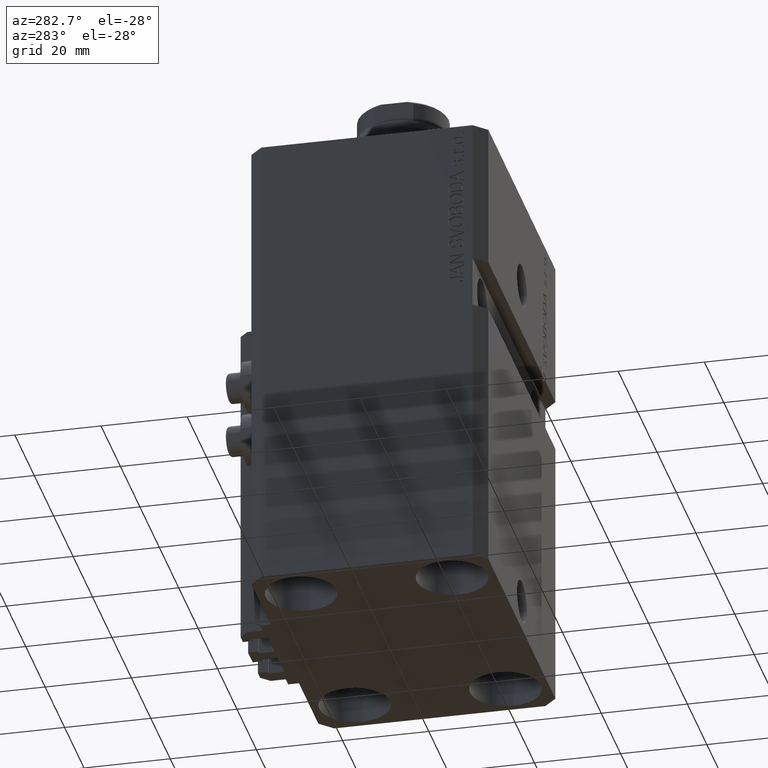
[diagram: clean part render]
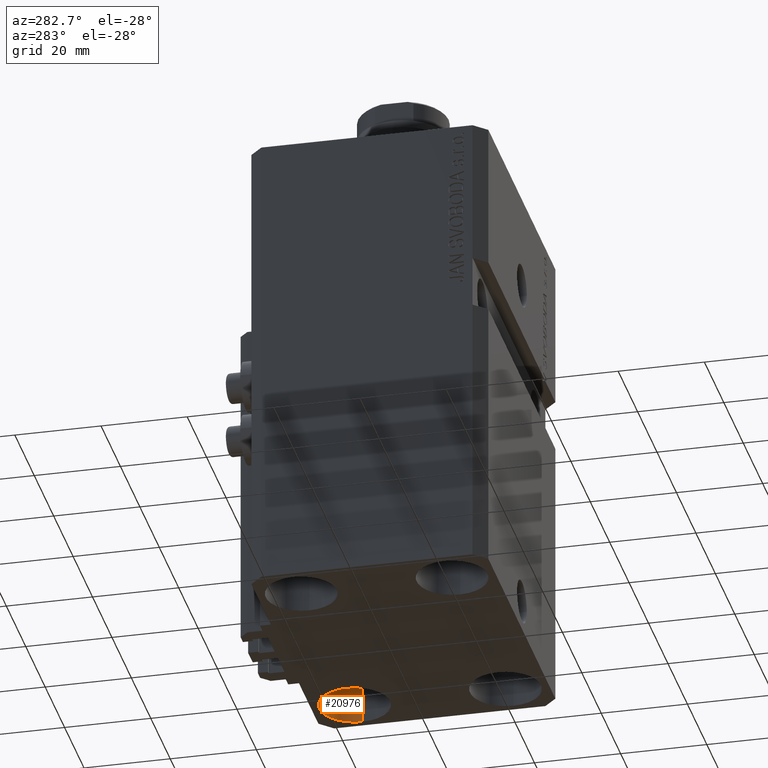
[diagram: same view with one face highlighted and labeled with its STEP entity id]
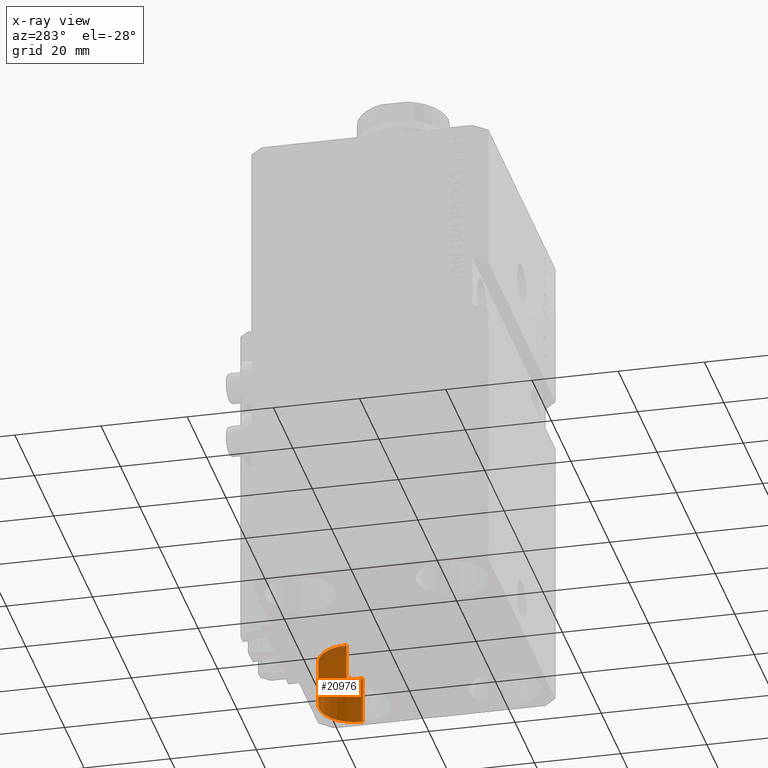
[diagram: x-ray of the same camera — body ghosted, the highlighted face saturated]
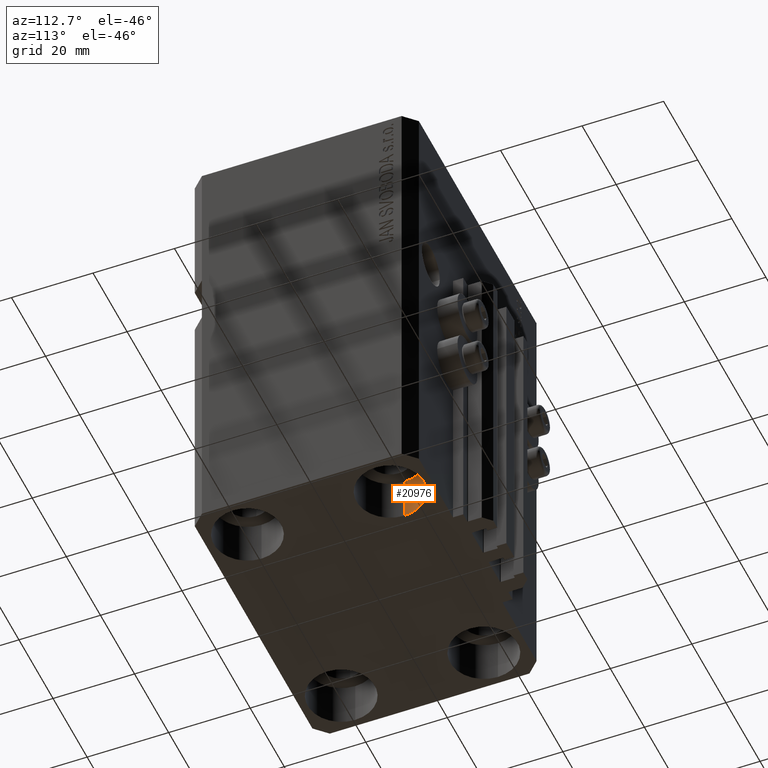
[diagram: same view with one face highlighted and labeled with its STEP entity id]
A machine part, auxiliary view. The second image highlights one B-rep face of the part: STEP entity #20976.
The next image is the same camera in x-ray: the body ghosted, the highlighted face saturated — about 16% of this face is hidden behind the body in this view.
A second angle (auxiliary view) of the same face is appended — the face is thin or edge-on in the first view.
In plain terms, the highlighted cylindrical surface (edge-blend (fillet) strip) has radius 8.25 mm, axis along (-0, -0, -1).
Its self-contained STEP definition (entity closure, byte-faithful):
#546 = DIRECTION ( 'NONE',  ( -0.000000000000000000, -0.000000000000000000, -1.000000000000000000 ) ) ;
#1537 = CARTESIAN_POINT ( 'NONE',  ( 19.25000000000000000, 17.50000000000001066, -110.0000000000000000 ) ) ;
#2198 = AXIS2_PLACEMENT_3D ( 'NONE', #45169, #35095, #13108 ) ;
#2378 = CARTESIAN_POINT ( 'NONE',  ( 27.49999999999999645, 17.50000000000001066, -99.00000000000000000 ) ) ;
#3633 = ORIENTED_EDGE ( 'NONE', *, *, #22043, .F. ) ;
#4016 = LINE ( 'NONE', #14540, #39989 ) ;
#4193 = VERTEX_POINT ( 'NONE', #23286 ) ;
#5134 = VECTOR ( 'NONE', #546, 1000.000000000000000 ) ;
#9011 = EDGE_CURVE ( 'NONE', #38632, #4193, #29621, .T. ) ;
#9272 = DIRECTION ( 'NONE',  ( -0.000000000000000000, -0.000000000000000000, 1.000000000000000000 ) ) ;
#12609 = CARTESIAN_POINT ( 'NONE',  ( 35.74999999999999289, 17.50000000000001066, -99.00000000000000000 ) ) ;
#13108 = DIRECTION ( 'NONE',  ( -1.000000000000000000, 0.000000000000000000, 0.000000000000000000 ) ) ;
#14540 = CARTESIAN_POINT ( 'NONE',  ( 35.74999999999999289, 17.50000000000001066, -99.00000000000000000 ) ) ;
#15178 = EDGE_CURVE ( 'NONE', #4193, #16144, #25805, .T. ) ;
#15244 = EDGE_LOOP ( 'NONE', ( #25273, #27801, #36884, #3633 ) ) ;
#16144 = VERTEX_POINT ( 'NONE', #1537 ) ;
#18536 = CARTESIAN_POINT ( 'NONE',  ( 35.74999999999999289, 17.50000000000001066, -110.0000000000000000 ) ) ;
#20976 = ADVANCED_FACE ( 'NONE', ( #41890 ), #24550, .F. ) ;
#22043 = EDGE_CURVE ( 'NONE', #23324, #16144, #44082, .T. ) ;
#23286 = CARTESIAN_POINT ( 'NONE',  ( 19.25000000000000000, 17.50000000000001066, -99.00000000000000000 ) ) ;
#23287 = CARTESIAN_POINT ( 'NONE',  ( 27.49999999999999645, 17.50000000000001066, -110.0000000000000000 ) ) ;
#23324 = VERTEX_POINT ( 'NONE', #18536 ) ;
#23886 = AXIS2_PLACEMENT_3D ( 'NONE', #23287, #9272, #31270 ) ;
#24550 = CYLINDRICAL_SURFACE ( 'NONE', #2198, 8.249999999999996447 ) ;
#25273 = ORIENTED_EDGE ( 'NONE', *, *, #35210, .F. ) ;
#25805 = LINE ( 'NONE', #44064, #5134 ) ;
#26607 = AXIS2_PLACEMENT_3D ( 'NONE', #2378, #41687, #37703 ) ;
#27801 = ORIENTED_EDGE ( 'NONE', *, *, #9011, .T. ) ;
#29621 = CIRCLE ( 'NONE', #26607, 8.249999999999992895 ) ;
#31270 = DIRECTION ( 'NONE',  ( 1.000000000000000000, 0.000000000000000000, 0.000000000000000000 ) ) ;
#35095 = DIRECTION ( 'NONE',  ( -0.000000000000000000, -0.000000000000000000, -1.000000000000000000 ) ) ;
#35210 = EDGE_CURVE ( 'NONE', #38632, #23324, #4016, .T. ) ;
#36884 = ORIENTED_EDGE ( 'NONE', *, *, #15178, .T. ) ;
#37703 = DIRECTION ( 'NONE',  ( 1.000000000000000000, 0.000000000000000000, 0.000000000000000000 ) ) ;
#38632 = VERTEX_POINT ( 'NONE', #12609 ) ;
#39989 = VECTOR ( 'NONE', #42861, 1000.000000000000000 ) ;
#41687 = DIRECTION ( 'NONE',  ( -0.000000000000000000, -0.000000000000000000, 1.000000000000000000 ) ) ;
#41890 = FACE_OUTER_BOUND ( 'NONE', #15244, .T. ) ;
#42861 = DIRECTION ( 'NONE',  ( -0.000000000000000000, -0.000000000000000000, -1.000000000000000000 ) ) ;
#44064 = CARTESIAN_POINT ( 'NONE',  ( 19.25000000000000000, 17.50000000000001066, -99.00000000000000000 ) ) ;
#44082 = CIRCLE ( 'NONE', #23886, 8.249999999999992895 ) ;
#45169 = CARTESIAN_POINT ( 'NONE',  ( 27.49999999999999645, 17.50000000000001066, -99.00000000000000000 ) ) ;